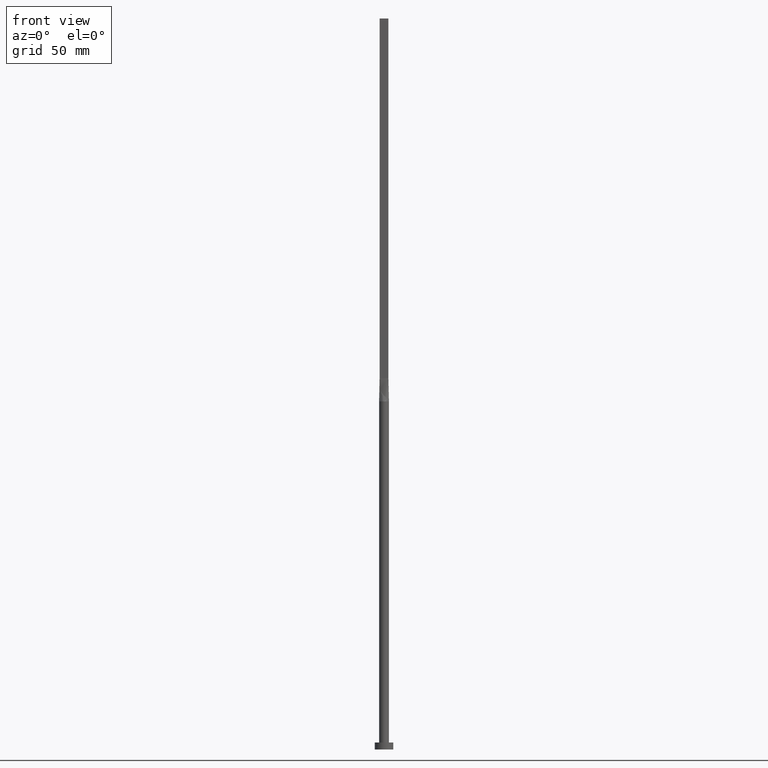
[diagram: clean part render]
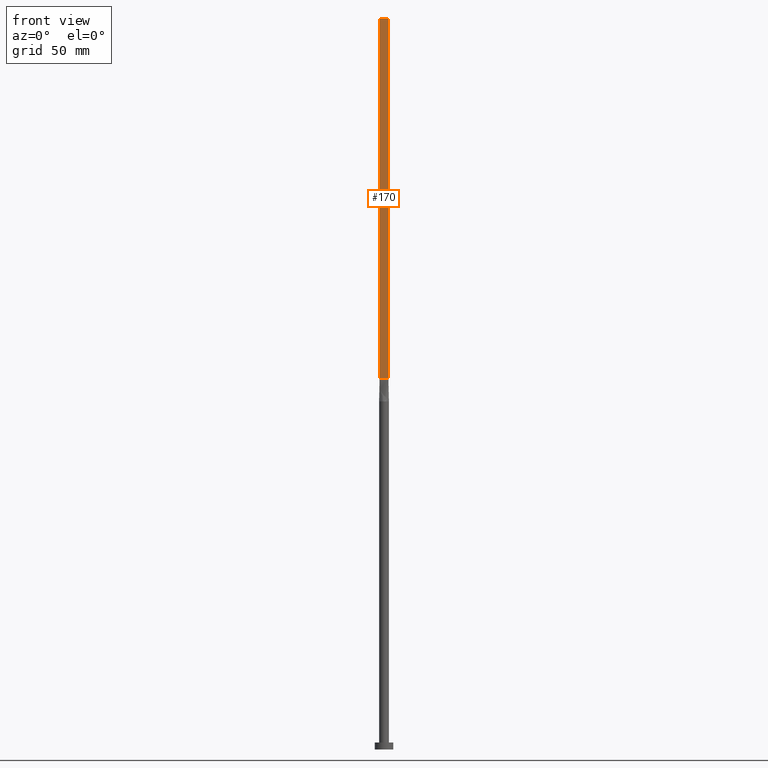
[diagram: same view with one face highlighted and labeled with its STEP entity id]
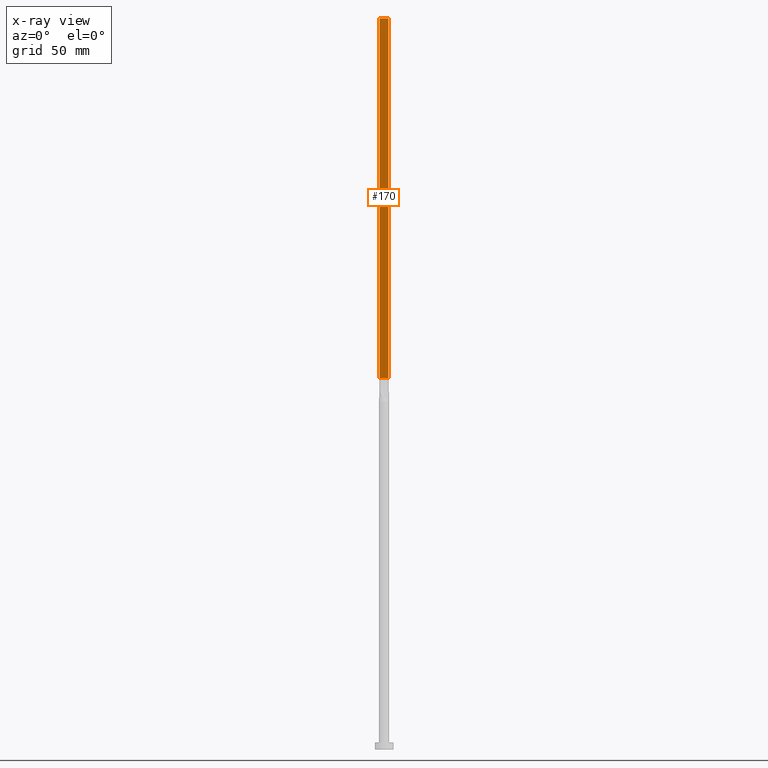
[diagram: x-ray of the same camera — body ghosted, the highlighted face saturated]
A machine part, front view. The second image highlights one B-rep face of the part: STEP entity #170.
The next image is the same camera in x-ray: the body ghosted, the highlighted face saturated — about 0% of this face is hidden behind the body in this view.
In plain terms, the highlighted planar face has unit normal (0, 1, -0).
Its self-contained STEP definition (entity closure, byte-faithful):
#13 = VERTEX_POINT ( 'NONE', #154 ) ;
#23 = CARTESIAN_POINT ( 'NONE',  ( -1.899999999999999911, -0.4999999999999995559, 315.0000000000000000 ) ) ;
#39 = LINE ( 'NONE', #542, #507 ) ;
#72 = VERTEX_POINT ( 'NONE', #128 ) ;
#111 = DIRECTION ( 'NONE',  ( 1.000000000000000000, -5.706327223607918787E-17, 0.000000000000000000 ) ) ;
#128 = CARTESIAN_POINT ( 'NONE',  ( -1.899999999999999911, -0.4999999999999995559, 315.0000000000000000 ) ) ;
#154 = CARTESIAN_POINT ( 'NONE',  ( 1.899999999999999023, -0.4999999999999997780, 315.0000000000000000 ) ) ;
#170 = ADVANCED_FACE ( 'NONE', ( #204 ), #523, .F. ) ;
#182 = ORIENTED_EDGE ( 'NONE', *, *, #541, .F. ) ;
#204 = FACE_OUTER_BOUND ( 'NONE', #449, .T. ) ;
#218 = CARTESIAN_POINT ( 'NONE',  ( -1.899999999999999911, -0.4999999999999995559, 160.0000000000000000 ) ) ;
#241 = DIRECTION ( 'NONE',  ( 5.706327223607920020E-17, 1.000000000000000000, -0.000000000000000000 ) ) ;
#245 = LINE ( 'NONE', #23, #260 ) ;
#253 = CARTESIAN_POINT ( 'NONE',  ( -1.899999999999999911, -0.4999999999999995559, 315.0000000000000000 ) ) ;
#260 = VECTOR ( 'NONE', #353, 1000.000000000000000 ) ;
#269 = AXIS2_PLACEMENT_3D ( 'NONE', #394, #241, #386 ) ;
#336 = EDGE_CURVE ( 'NONE', #457, #450, #349, .T. ) ;
#340 = ORIENTED_EDGE ( 'NONE', *, *, #393, .T. ) ;
#349 = LINE ( 'NONE', #521, #423 ) ;
#353 = DIRECTION ( 'NONE',  ( 1.000000000000000000, -5.706327223607920020E-17, 0.000000000000000000 ) ) ;
#376 = EDGE_CURVE ( 'NONE', #13, #450, #39, .T. ) ;
#384 = ORIENTED_EDGE ( 'NONE', *, *, #336, .T. ) ;
#386 = DIRECTION ( 'NONE',  ( -1.000000000000000000, 5.706327223607920020E-17, 0.000000000000000000 ) ) ;
#393 = EDGE_CURVE ( 'NONE', #72, #457, #518, .T. ) ;
#394 = CARTESIAN_POINT ( 'NONE',  ( -1.899999999999999911, -0.4999999999999995559, 315.0000000000000000 ) ) ;
#423 = VECTOR ( 'NONE', #111, 1000.000000000000000 ) ;
#435 = DIRECTION ( 'NONE',  ( -0.000000000000000000, -0.000000000000000000, -1.000000000000000000 ) ) ;
#442 = ORIENTED_EDGE ( 'NONE', *, *, #376, .F. ) ;
#449 = EDGE_LOOP ( 'NONE', ( #384, #442, #182, #340 ) ) ;
#450 = VERTEX_POINT ( 'NONE', #503 ) ;
#457 = VERTEX_POINT ( 'NONE', #218 ) ;
#502 = DIRECTION ( 'NONE',  ( -0.000000000000000000, -0.000000000000000000, -1.000000000000000000 ) ) ;
#503 = CARTESIAN_POINT ( 'NONE',  ( 1.899999999999999023, -0.4999999999999997780, 160.0000000000000000 ) ) ;
#507 = VECTOR ( 'NONE', #502, 1000.000000000000000 ) ;
#518 = LINE ( 'NONE', #253, #524 ) ;
#521 = CARTESIAN_POINT ( 'NONE',  ( -1.899999999999999911, -0.4999999999999995559, 160.0000000000000000 ) ) ;
#523 = PLANE ( 'NONE',  #269 ) ;
#524 = VECTOR ( 'NONE', #435, 1000.000000000000000 ) ;
#541 = EDGE_CURVE ( 'NONE', #72, #13, #245, .T. ) ;
#542 = CARTESIAN_POINT ( 'NONE',  ( 1.899999999999999023, -0.4999999999999997780, 315.0000000000000000 ) ) ;